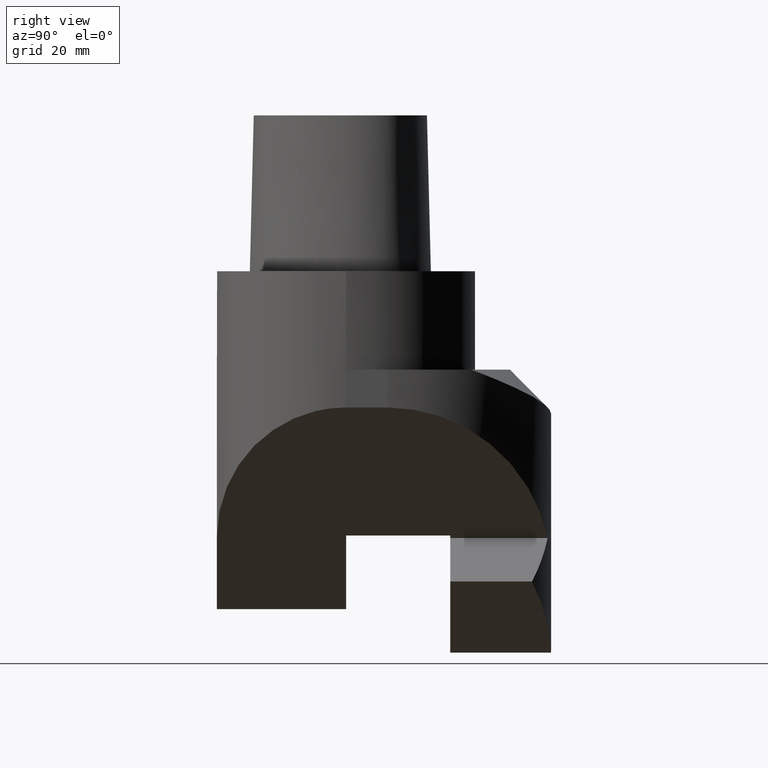
[diagram: clean part render]
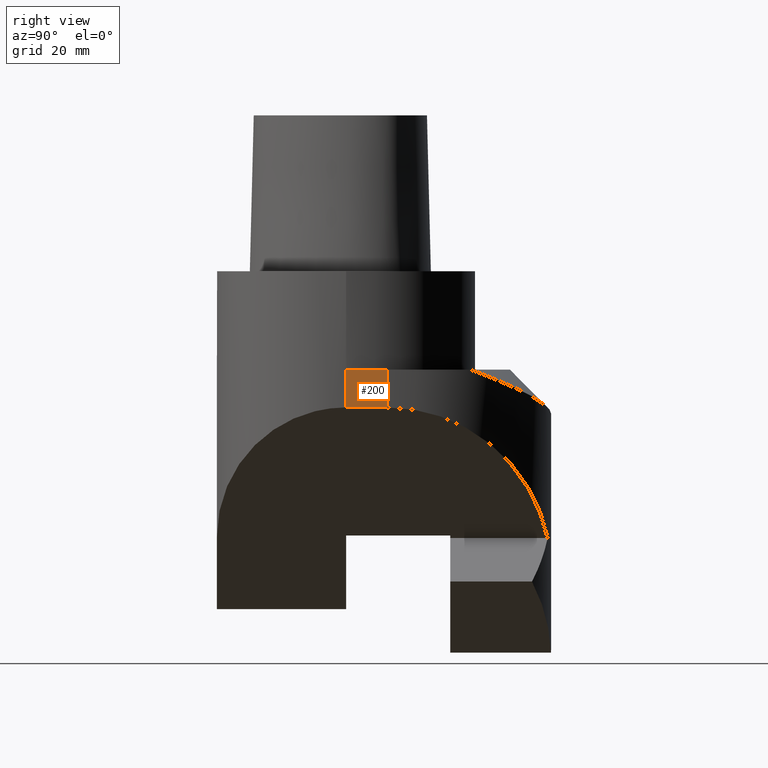
[diagram: same view with one face highlighted and labeled with its STEP entity id]
A machine part, right view. The second image highlights one B-rep face of the part: STEP entity #200.
In plain terms, the highlighted planar face has unit normal (-1, 0, 0).
Its self-contained STEP definition (entity closure, byte-faithful):
#129=EDGE_CURVE('Unnamed[1]',#357,#358,#359,.T.);
#200=ADVANCED_FACE('Unnamed[1]',(#459),#460,.F.);
#224=EDGE_CURVE('Unnamed[1]',#488,#489,#490,.T.);
#228=EDGE_CURVE('Unnamed[1]',#494,#488,#495,.T.);
#246=EDGE_CURVE('Unnamed[1]',#358,#489,#517,.T.);
#298=EDGE_CURVE('Unnamed[1]',#357,#494,#576,.T.);
#357=VERTEX_POINT('',#650);
#358=VERTEX_POINT('',#651);
#359=LINE('',#652,#653);
#459=FACE_OUTER_BOUND('',#954,.T.);
#460=PLANE('',#955);
#488=VERTEX_POINT('',#1022);
#489=VERTEX_POINT('',#1023);
#490=LINE('',#1024,#1025);
#494=VERTEX_POINT('',#1032);
#495=LINE('',#1033,#1034);
#517=LINE('',#1082,#1083);
#576=LINE('',#1228,#1229);
#650=CARTESIAN_POINT('',(31.4993377285877,-0.204261255196444,-33.2163910314101));
#651=CARTESIAN_POINT('',(31.4993377285877,10.0000000000001,-33.2163910314101));
#652=CARTESIAN_POINT('',(31.4993377285877,2.44893468620089,-33.2163910314101));
#653=VECTOR('',#1264,1.0);
#954=EDGE_LOOP('',(#1386,#1387,#1388,#1389,#1390));
#955=AXIS2_PLACEMENT_3D('',#1391,#1392,#1393);
#1022=CARTESIAN_POINT('',(31.4993377285877,0.204261255188516,-24.0));
#1023=CARTESIAN_POINT('',(31.4993377285877,10.0000000000001,-24.0));
#1024=CARTESIAN_POINT('',(31.4993377285877,2.44893468620089,-24.0));
#1025=VECTOR('',#1425,1.0);
#1032=CARTESIAN_POINT('',(31.4993377285877,-0.20426125519644,-24.0));
#1033=CARTESIAN_POINT('',(31.4993377285877,-0.204261255196454,-24.0));
#1034=VECTOR('',#1427,1.0);
#1082=CARTESIAN_POINT('',(31.4993377285877,10.0,-225.691832081474));
#1083=VECTOR('',#1452,1.0);
#1228=CARTESIAN_POINT('',(31.4993377285877,-0.204261255196528,-225.691832081474));
#1229=VECTOR('',#1524,1.0);
#1264=DIRECTION('',(1.83697019872103E-016,1.0,-2.22044604925031E-016));
#1386=ORIENTED_EDGE('',*,*,#129,.T.);
#1387=ORIENTED_EDGE('',*,*,#246,.T.);
#1388=ORIENTED_EDGE('',*,*,#224,.F.);
#1389=ORIENTED_EDGE('',*,*,#228,.F.);
#1390=ORIENTED_EDGE('',*,*,#298,.F.);
#1391=CARTESIAN_POINT('',(31.4993377285877,4.89786937240175,-225.691832081474));
#1392=DIRECTION('',(-1.0,1.83697019872103E-016,1.81140886498535E-016));
#1393=DIRECTION('',(-1.83697019872103E-016,-1.0,2.22044604925031E-016));
#1425=DIRECTION('',(1.83697019872103E-016,1.0,-2.22044604925031E-016));
#1427=DIRECTION('',(1.83697019872103E-016,1.0,-2.22044604925031E-016));
#1452=DIRECTION('',(1.81140886498535E-016,4.33419372587335E-016,1.0));
#1524=DIRECTION('',(1.81140886498535E-016,4.33419372587335E-016,1.0));